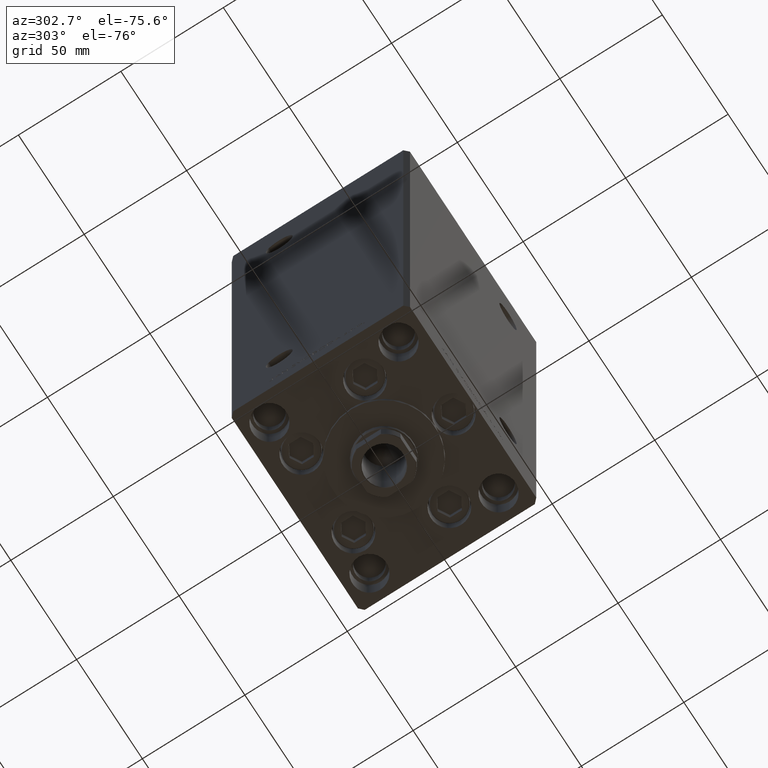
[diagram: clean part render]
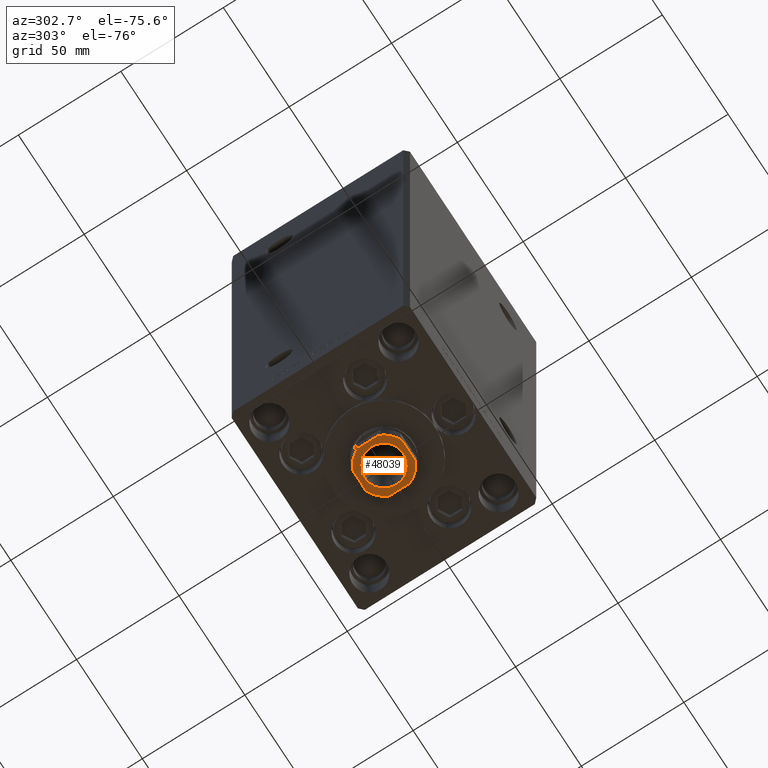
[diagram: same view with one face highlighted and labeled with its STEP entity id]
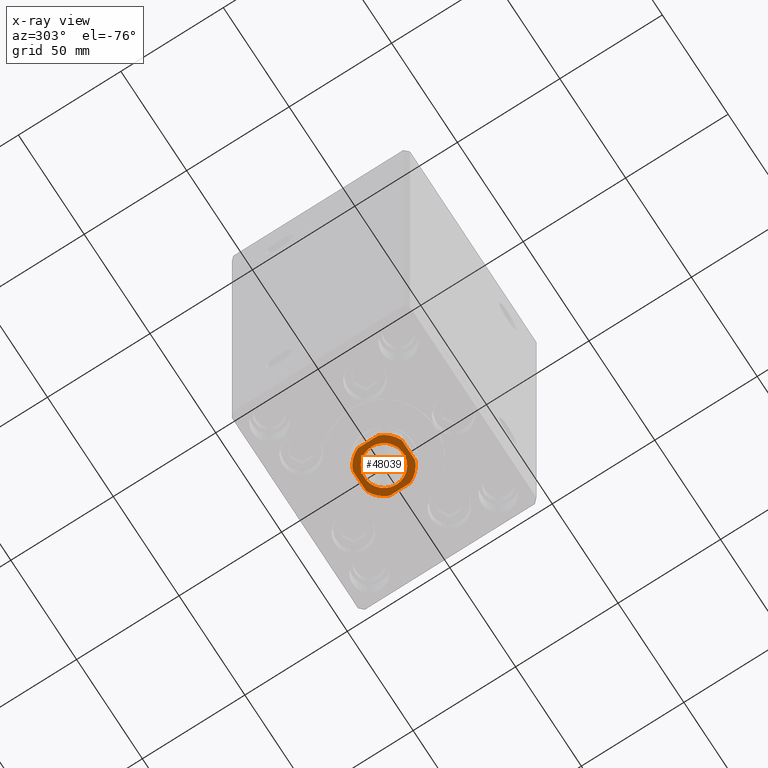
[diagram: x-ray of the same camera — body ghosted, the highlighted face saturated]
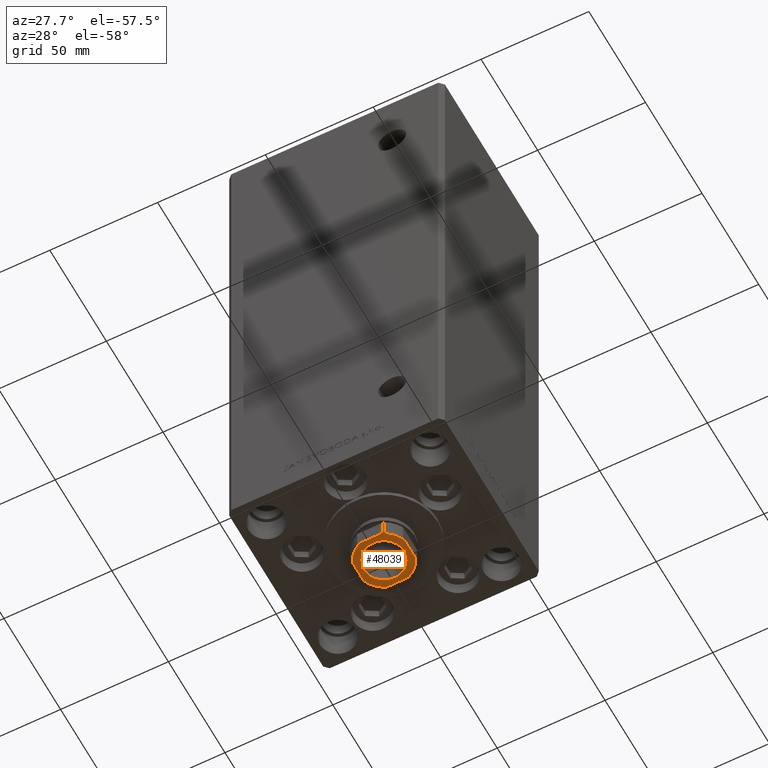
[diagram: same view with one face highlighted and labeled with its STEP entity id]
A machine part, auxiliary view. The second image highlights one B-rep face of the part: STEP entity #48039.
The next image is the same camera in x-ray: the body ghosted, the highlighted face saturated — about 0% of this face is hidden behind the body in this view.
A second angle (auxiliary view) of the same face is appended — the face is thin or edge-on in the first view.
In plain terms, the highlighted planar face has unit normal (0, 0, -1).
Its self-contained STEP definition (entity closure, byte-faithful):
#4 = CARTESIAN_POINT ( 'NONE',  ( -4.999999999999992895, -12.00000000000000178, 235.2500000000000284 ) ) ;
#370 = PLANE ( 'NONE',  #37567 ) ;
#1773 = VERTEX_POINT ( 'NONE', #40083 ) ;
#1977 = ORIENTED_EDGE ( 'NONE', *, *, #6359, .T. ) ;
#2110 = DIRECTION ( 'NONE',  ( 0.000000000000000000, -0.000000000000000000, -1.000000000000000000 ) ) ;
#2391 = VERTEX_POINT ( 'NONE', #24748 ) ;
#3158 = VERTEX_POINT ( 'NONE', #32741 ) ;
#3636 = VERTEX_POINT ( 'NONE', #8082 ) ;
#4178 = ORIENTED_EDGE ( 'NONE', *, *, #11851, .T. ) ;
#4656 = DIRECTION ( 'NONE',  ( 1.000000000000000000, 0.000000000000000000, 0.000000000000000000 ) ) ;
#5087 = ORIENTED_EDGE ( 'NONE', *, *, #28512, .T. ) ;
#6359 = EDGE_CURVE ( 'NONE', #49792, #41105, #10103, .T. ) ;
#7368 = EDGE_LOOP ( 'NONE', ( #10724, #5087 ) ) ;
#8082 = CARTESIAN_POINT ( 'NONE',  ( 12.00000000000000178, 4.999999999999994671, 235.2500000000000284 ) ) ;
#8602 = CARTESIAN_POINT ( 'NONE',  ( 0.000000000000000000, 0.000000000000000000, 235.2500000000000284 ) ) ;
#10035 = VECTOR ( 'NONE', #17640, 1000.000000000000000 ) ;
#10078 = CARTESIAN_POINT ( 'NONE',  ( 0.000000000000000000, 0.000000000000000000, 235.2500000000000284 ) ) ;
#10103 = LINE ( 'NONE', #29124, #36297 ) ;
#10405 = CIRCLE ( 'NONE', #32263, 13.00000000000000000 ) ;
#10724 = ORIENTED_EDGE ( 'NONE', *, *, #31469, .T. ) ;
#11851 = EDGE_CURVE ( 'NONE', #3158, #2391, #46805, .T. ) ;
#12073 = CARTESIAN_POINT ( 'NONE',  ( -11.99999999999999822, 11.99999999999999822, 235.2500000000000284 ) ) ;
#12507 = DIRECTION ( 'NONE',  ( -0.000000000000000000, 0.000000000000000000, 1.000000000000000000 ) ) ;
#13277 = CARTESIAN_POINT ( 'NONE',  ( -11.99999999999999645, -12.00000000000000178, 235.2500000000000284 ) ) ;
#13891 = DIRECTION ( 'NONE',  ( 1.000000000000000000, 0.000000000000000000, 0.000000000000000000 ) ) ;
#13916 = DIRECTION ( 'NONE',  ( 7.228014483236695816E-17, -1.000000000000000000, 0.000000000000000000 ) ) ;
#14504 = CARTESIAN_POINT ( 'NONE',  ( 0.000000000000000000, 0.000000000000000000, 235.2500000000000284 ) ) ;
#15471 = CIRCLE ( 'NONE', #38167, 13.00000000000000000 ) ;
#16608 = EDGE_CURVE ( 'NONE', #3636, #3158, #30820, .T. ) ;
#17373 = EDGE_CURVE ( 'NONE', #2391, #49792, #46235, .T. ) ;
#17581 = DIRECTION ( 'NONE',  ( 1.000000000000000000, 7.228014483236695816E-17, 0.000000000000000000 ) ) ;
#17611 = VERTEX_POINT ( 'NONE', #29287 ) ;
#17640 = DIRECTION ( 'NONE',  ( -1.445602896647339163E-16, 1.000000000000000000, -0.000000000000000000 ) ) ;
#17904 = AXIS2_PLACEMENT_3D ( 'NONE', #14504, #2110, #22100 ) ;
#20995 = DIRECTION ( 'NONE',  ( -0.000000000000000000, 0.000000000000000000, 1.000000000000000000 ) ) ;
#21035 = ORIENTED_EDGE ( 'NONE', *, *, #16608, .T. ) ;
#21099 = VECTOR ( 'NONE', #17581, 1000.000000000000000 ) ;
#21445 = CARTESIAN_POINT ( 'NONE',  ( 12.00000000000000000, 12.00000000000000000, 235.2500000000000284 ) ) ;
#21751 = CARTESIAN_POINT ( 'NONE',  ( -11.99999999999999822, 5.000000000000000888, 235.2500000000000284 ) ) ;
#22100 = DIRECTION ( 'NONE',  ( 1.000000000000000000, 0.000000000000000000, 0.000000000000000000 ) ) ;
#22749 = DIRECTION ( 'NONE',  ( 1.000000000000000000, 0.000000000000000000, 0.000000000000000000 ) ) ;
#23026 = DIRECTION ( 'NONE',  ( 1.000000000000000000, 0.000000000000000000, 0.000000000000000000 ) ) ;
#23659 = DIRECTION ( 'NONE',  ( -0.000000000000000000, 0.000000000000000000, 1.000000000000000000 ) ) ;
#24748 = CARTESIAN_POINT ( 'NONE',  ( -5.000000000000001776, 11.99999999999999822, 235.2500000000000284 ) ) ;
#26025 = EDGE_CURVE ( 'NONE', #29699, #1773, #47993, .T. ) ;
#27216 = CARTESIAN_POINT ( 'NONE',  ( 0.000000000000000000, 0.000000000000000000, 235.2500000000000284 ) ) ;
#27567 = CARTESIAN_POINT ( 'NONE',  ( 0.000000000000000000, 0.000000000000000000, 235.2500000000000284 ) ) ;
#28281 = LINE ( 'NONE', #21445, #10035 ) ;
#28301 = EDGE_CURVE ( 'NONE', #1773, #17611, #15471, .T. ) ;
#28512 = EDGE_CURVE ( 'NONE', #36681, #44978, #39745, .T. ) ;
#29112 = ORIENTED_EDGE ( 'NONE', *, *, #39390, .T. ) ;
#29124 = CARTESIAN_POINT ( 'NONE',  ( -11.99999999999999822, 11.99999999999999822, 235.2500000000000284 ) ) ;
#29287 = CARTESIAN_POINT ( 'NONE',  ( 12.00000000000000178, -4.999999999999990230, 235.2500000000000284 ) ) ;
#29699 = VERTEX_POINT ( 'NONE', #4 ) ;
#29842 = ORIENTED_EDGE ( 'NONE', *, *, #28301, .T. ) ;
#30415 = ORIENTED_EDGE ( 'NONE', *, *, #47160, .T. ) ;
#30820 = CIRCLE ( 'NONE', #46204, 13.00000000000000000 ) ;
#31260 = CARTESIAN_POINT ( 'NONE',  ( 0.000000000000000000, 0.000000000000000000, 235.2500000000000284 ) ) ;
#31469 = EDGE_CURVE ( 'NONE', #44978, #36681, #31773, .T. ) ;
#31518 = DIRECTION ( 'NONE',  ( 1.000000000000000000, 0.000000000000000000, 0.000000000000000000 ) ) ;
#31773 = CIRCLE ( 'NONE', #42305, 9.550000000000002487 ) ;
#32263 = AXIS2_PLACEMENT_3D ( 'NONE', #27567, #42038, #23026 ) ;
#32741 = CARTESIAN_POINT ( 'NONE',  ( 5.000000000000002665, 12.00000000000000000, 235.2500000000000284 ) ) ;
#32772 = EDGE_LOOP ( 'NONE', ( #1977, #30415, #34613, #29842, #29112, #21035, #4178, #49112 ) ) ;
#34221 = CARTESIAN_POINT ( 'NONE',  ( 9.550000000000002487, 0.000000000000000000, 235.2500000000000284 ) ) ;
#34613 = ORIENTED_EDGE ( 'NONE', *, *, #26025, .T. ) ;
#36297 = VECTOR ( 'NONE', #13916, 1000.000000000000000 ) ;
#36681 = VERTEX_POINT ( 'NONE', #47452 ) ;
#37567 = AXIS2_PLACEMENT_3D ( 'NONE', #31260, #23659, #4656 ) ;
#38167 = AXIS2_PLACEMENT_3D ( 'NONE', #8602, #46899, #39524 ) ;
#38871 = FACE_OUTER_BOUND ( 'NONE', #32772, .T. ) ;
#39390 = EDGE_CURVE ( 'NONE', #17611, #3636, #28281, .T. ) ;
#39524 = DIRECTION ( 'NONE',  ( 1.000000000000000000, 0.000000000000000000, 0.000000000000000000 ) ) ;
#39745 = CIRCLE ( 'NONE', #17904, 9.550000000000002487 ) ;
#40083 = CARTESIAN_POINT ( 'NONE',  ( 4.999999999999993783, -12.00000000000000178, 235.2500000000000284 ) ) ;
#41105 = VERTEX_POINT ( 'NONE', #48840 ) ;
#42038 = DIRECTION ( 'NONE',  ( -0.000000000000000000, 0.000000000000000000, 1.000000000000000000 ) ) ;
#42305 = AXIS2_PLACEMENT_3D ( 'NONE', #49103, #45066, #22749 ) ;
#42677 = FACE_BOUND ( 'NONE', #7368, .T. ) ;
#44007 = DIRECTION ( 'NONE',  ( -1.000000000000000000, -7.228014483236695816E-17, -0.000000000000000000 ) ) ;
#44978 = VERTEX_POINT ( 'NONE', #34221 ) ;
#45066 = DIRECTION ( 'NONE',  ( 0.000000000000000000, -0.000000000000000000, -1.000000000000000000 ) ) ;
#45442 = AXIS2_PLACEMENT_3D ( 'NONE', #10078, #20995, #13891 ) ;
#46061 = VECTOR ( 'NONE', #44007, 1000.000000000000000 ) ;
#46204 = AXIS2_PLACEMENT_3D ( 'NONE', #27216, #12507, #31518 ) ;
#46235 = CIRCLE ( 'NONE', #45442, 13.00000000000000000 ) ;
#46805 = LINE ( 'NONE', #12073, #46061 ) ;
#46899 = DIRECTION ( 'NONE',  ( -0.000000000000000000, 0.000000000000000000, 1.000000000000000000 ) ) ;
#47160 = EDGE_CURVE ( 'NONE', #41105, #29699, #10405, .T. ) ;
#47452 = CARTESIAN_POINT ( 'NONE',  ( -9.550000000000002487, 1.169537693185722755E-15, 235.2500000000000284 ) ) ;
#47993 = LINE ( 'NONE', #13277, #21099 ) ;
#48039 = ADVANCED_FACE ( 'NONE', ( #42677, #38871 ), #370, .T. ) ;
#48840 = CARTESIAN_POINT ( 'NONE',  ( -11.99999999999999822, -5.000000000000001776, 235.2500000000000284 ) ) ;
#49103 = CARTESIAN_POINT ( 'NONE',  ( 0.000000000000000000, 0.000000000000000000, 235.2500000000000284 ) ) ;
#49112 = ORIENTED_EDGE ( 'NONE', *, *, #17373, .T. ) ;
#49792 = VERTEX_POINT ( 'NONE', #21751 ) ;